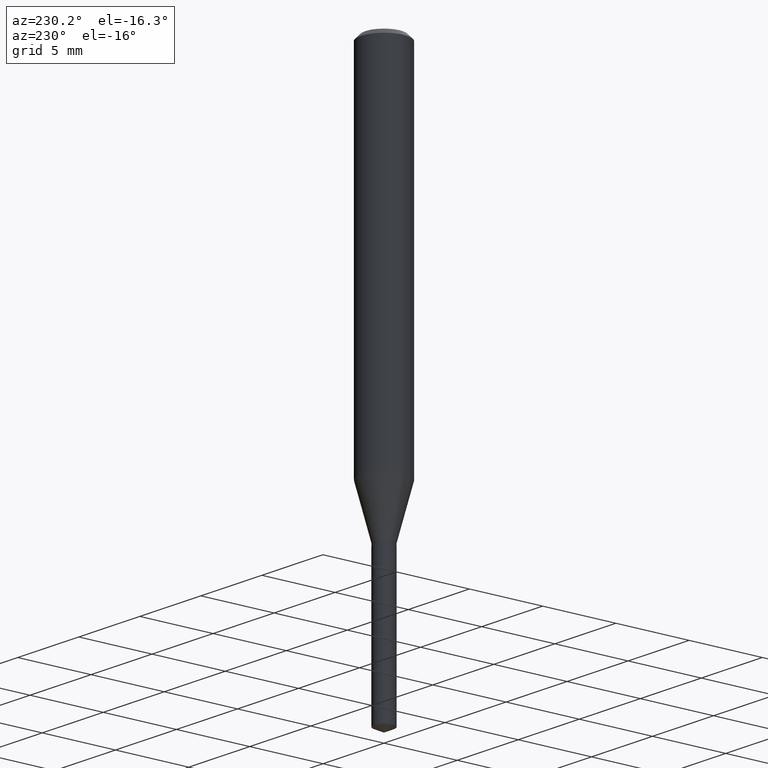
[diagram: clean part render]
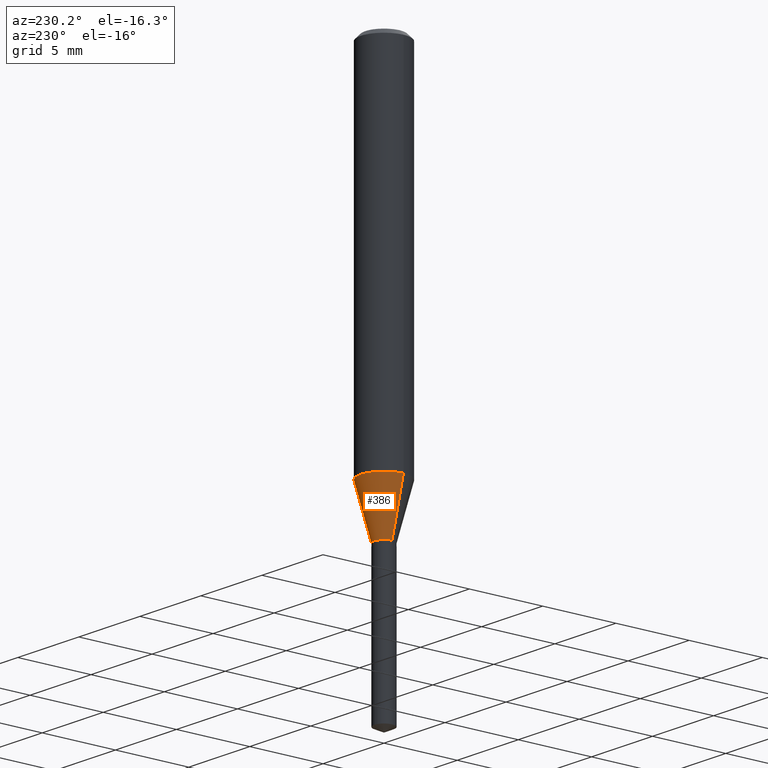
[diagram: same view with one face highlighted and labeled with its STEP entity id]
A machine part, auxiliary view. The second image highlights one B-rep face of the part: STEP entity #386.
In plain terms, the highlighted conical surface has half-angle 15 deg.
Its self-contained STEP definition (entity closure, byte-faithful):
#6 = ORIENTED_EDGE ( 'NONE', *, *, #234, .F. ) ;
#7 = LINE ( 'NONE', #319, #204 ) ;
#16 = VECTOR ( 'NONE', #37, 39.37007874015747433 ) ;
#27 = DIRECTION ( 'NONE',  ( 1.000000000000000000, -6.982962677686258822E-15, 0.000000000000000000 ) ) ;
#37 = DIRECTION ( 'NONE',  ( 0.2588190451025213501, 1.565188264969621968E-15, 0.9659258262890682012 ) ) ;
#38 = EDGE_CURVE ( 'NONE', #166, #331, #316, .T. ) ;
#56 = ORIENTED_EDGE ( 'NONE', *, *, #38, .T. ) ;
#62 = ORIENTED_EDGE ( 'NONE', *, *, #127, .F. ) ;
#77 = DIRECTION ( 'NONE',  ( -0.2588190451025213501, 5.211531920934551042E-15, 0.9659258262890682012 ) ) ;
#84 = EDGE_CURVE ( 'NONE', #331, #439, #7, .T. ) ;
#90 = CARTESIAN_POINT ( 'NONE',  ( 0.02599999999999999534, -3.994952947904326539E-15, -1.092200000000000060 ) ) ;
#97 = CARTESIAN_POINT ( 'NONE',  ( 0.06250000000000011102, -3.774222005756071563E-15, -0.9559801455237360024 ) ) ;
#124 = DIRECTION ( 'NONE',  ( 1.000000000000000000, -6.982962677686258822E-15, 0.000000000000000000 ) ) ;
#127 = EDGE_CURVE ( 'NONE', #296, #439, #348, .T. ) ;
#143 = CARTESIAN_POINT ( 'NONE',  ( 2.670941030115406477E-29, -3.813395918284483857E-15, -1.092200000000000060 ) ) ;
#164 = CARTESIAN_POINT ( 'NONE',  ( 2.670941030115406477E-29, -3.813395918284483857E-15, -1.092200000000000060 ) ) ;
#166 = VERTEX_POINT ( 'NONE', #90 ) ;
#204 = VECTOR ( 'NONE', #77, 39.37007874015747433 ) ;
#213 = EDGE_LOOP ( 'NONE', ( #56, #419, #62, #6 ) ) ;
#216 = CARTESIAN_POINT ( 'NONE',  ( -0.06250000000000011102, -2.893697628550616094E-15, -0.9559801455237360024 ) ) ;
#226 = AXIS2_PLACEMENT_3D ( 'NONE', #164, #235, #124 ) ;
#230 = LINE ( 'NONE', #378, #16 ) ;
#234 = EDGE_CURVE ( 'NONE', #166, #296, #230, .T. ) ;
#235 = DIRECTION ( 'NONE',  ( -2.445468806185136597E-29, 3.491481338843145583E-15, 1.000000000000000000 ) ) ;
#237 = DIRECTION ( 'NONE',  ( 1.000000000000000000, -6.982962677686264344E-15, 0.000000000000000000 ) ) ;
#242 = CARTESIAN_POINT ( 'NONE',  ( -0.02599999999999999534, -3.641398713873635015E-15, -1.092200000000000060 ) ) ;
#245 = AXIS2_PLACEMENT_3D ( 'NONE', #143, #295, #27 ) ;
#288 = CONICAL_SURFACE ( 'NONE', #245, 0.02599999999999999534, 0.2617993877991500740 ) ;
#295 = DIRECTION ( 'NONE',  ( -2.445468806185136597E-29, 3.491481338843145583E-15, 1.000000000000000000 ) ) ;
#296 = VERTEX_POINT ( 'NONE', #97 ) ;
#316 = CIRCLE ( 'NONE', #226, 0.02599999999999999534 ) ;
#319 = CARTESIAN_POINT ( 'NONE',  ( -0.02599999999999999534, -3.628654806986858433E-15, -1.092200000000000060 ) ) ;
#331 = VERTEX_POINT ( 'NONE', #242 ) ;
#348 = CIRCLE ( 'NONE', #411, 0.06250000000000012490 ) ;
#378 = CARTESIAN_POINT ( 'NONE',  ( 0.02599999999999999534, -3.994952947904326539E-15, -1.092200000000000060 ) ) ;
#385 = DIRECTION ( 'NONE',  ( -2.445468806185136597E-29, 3.491481338843145583E-15, 1.000000000000000000 ) ) ;
#386 = ADVANCED_FACE ( 'NONE', ( #403 ), #288, .T. ) ;
#403 = FACE_OUTER_BOUND ( 'NONE', #213, .T. ) ;
#411 = AXIS2_PLACEMENT_3D ( 'NONE', #423, #385, #237 ) ;
#419 = ORIENTED_EDGE ( 'NONE', *, *, #84, .T. ) ;
#423 = CARTESIAN_POINT ( 'NONE',  ( 2.337819625210623872E-29, -3.337786838400679105E-15, -0.9559801455237360024 ) ) ;
#439 = VERTEX_POINT ( 'NONE', #216 ) ;